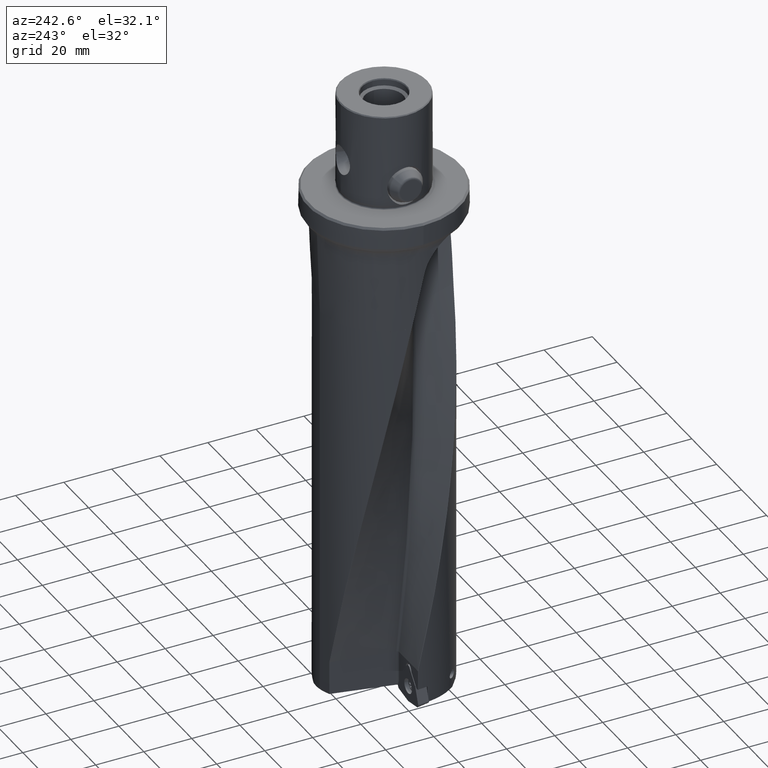
[diagram: clean part render]
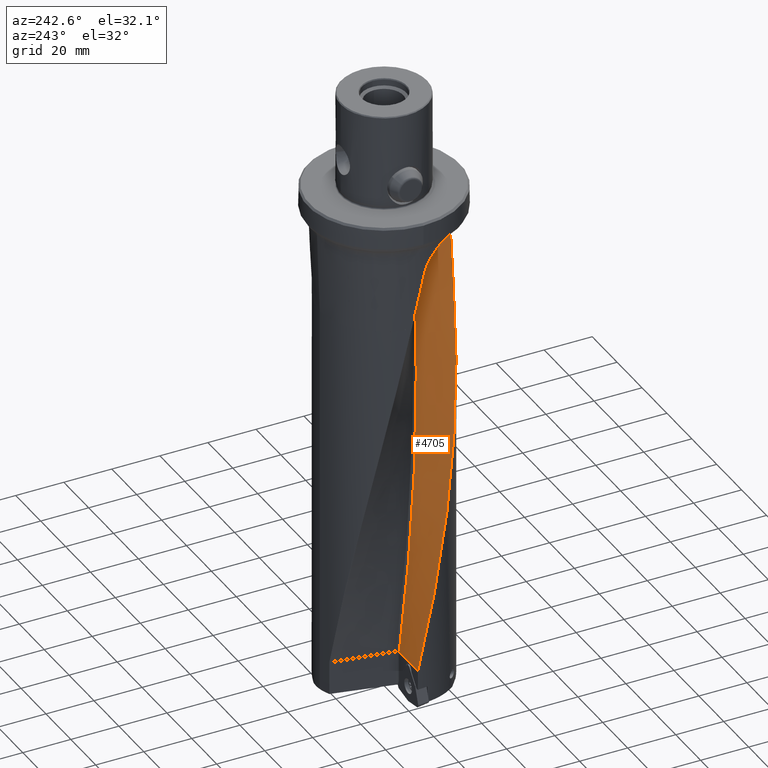
[diagram: same view with one face highlighted and labeled with its STEP entity id]
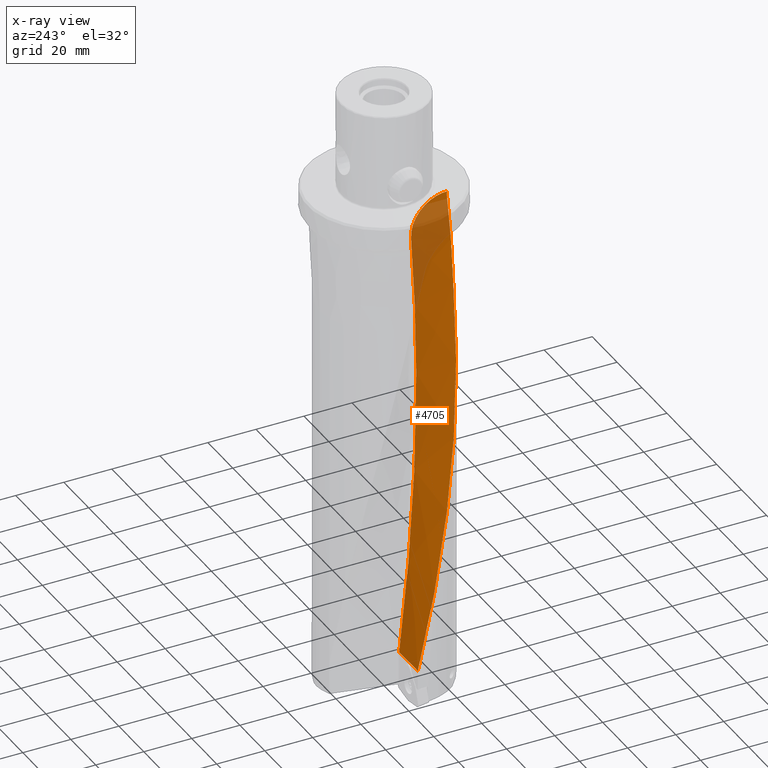
[diagram: x-ray of the same camera — body ghosted, the highlighted face saturated]
A machine part, auxiliary view. The second image highlights one B-rep face of the part: STEP entity #4705.
The next image is the same camera in x-ray: the body ghosted, the highlighted face saturated — about 13% of this face is hidden behind the body in this view.
In plain terms, the highlighted face is a freeform B-spline surface patch.
Its self-contained STEP definition (entity closure, byte-faithful):
#2061=EDGE_CURVE('NONE',#5253,#2175,#5753,.F.);
#2119=EDGE_CURVE('NONE',#3641,#4207,#5816,.T.);
#2175=VERTEX_POINT('NONE',#5877);
#2293=EDGE_CURVE('NONE',#3459,#2387,#6009,.T.);
#2387=VERTEX_POINT('NONE',#6117);
#2525=VERTEX_POINT('NONE',#6269);
#2707=EDGE_CURVE('NONE',#2175,#4785,#6469,.T.);
#2733=EDGE_CURVE('NONE',#5417,#5253,#6499,.F.);
#2829=EDGE_CURVE('NONE',#3459,#2525,#6606,.F.);
#3459=VERTEX_POINT('NONE',#7306);
#3487=EDGE_CURVE('NONE',#2387,#5417,#7340,.T.);
#3641=VERTEX_POINT('NONE',#7511);
#4207=VERTEX_POINT('NONE',#8147);
#4705=ADVANCED_FACE('NONE',(#8699),#8700,.T.);
#4785=VERTEX_POINT('NONE',#8786);
#5189=EDGE_CURVE('NONE',#4207,#2525,#9222,.T.);
#5253=VERTEX_POINT('NONE',#9289);
#5261=EDGE_CURVE('NONE',#4785,#3641,#9297,.T.);
#5417=VERTEX_POINT('NONE',#9472);
#5753=B_SPLINE_CURVE_WITH_KNOTS('',3,(#10646,#10647,#10648,#10649,#10650,#10651,#10652,#10653,#10654,#10655,#10656,#10657,#10658,#10659,#10660,#10661,#10662,#10663,#10664,#10665,#10666,#10667,#10668,#10669,#10670,#10671,#10672,#10673,#10674,#10675,#10676),.UNSPECIFIED.,.F.,.F.,(4,3,3,3,3,3,3,3,3,3,4),(0.0,0.0248487384319545,0.0370324245603338,0.0740648978611385,0.111097479039201,0.27462043930798,0.296263190505763,0.549257481116814,0.555509752870386,0.823924041653329,1.0),.UNSPECIFIED.);
#5816=LINE('',#12005,#12006);
#5877=CARTESIAN_POINT('',(-11.7444292904197,-0.259999999999999,-198.0));
#6009=B_SPLINE_CURVE_WITH_KNOTS('',3,(#14387,#14388,#14389,#14390,#14391,#14392,#14393,#14394,#14395,#14396,#14397,#14398,#14399),.UNSPECIFIED.,.F.,.F.,(4,3,3,3,4),(0.0,0.0196017286347085,0.528651392753987,0.891508665583998,1.0),.UNSPECIFIED.);
#6117=CARTESIAN_POINT('',(2.77654946059204,-27.6406512346424,-14.9137055816596));
#6269=CARTESIAN_POINT('',(-5.17314543508947,-26.1194532736821,-47.9783175582387));
#6469=B_SPLINE_CURVE_WITH_KNOTS('',3,(#18976,#18977,#18978,#18979),.UNSPECIFIED.,.F.,.F.,(4,4),(0.0,3.71899108156624E-007),.UNSPECIFIED.);
#6499=B_SPLINE_CURVE_WITH_KNOTS('',3,(#19023,#19024,#19025,#19026,#19027,#19028,#19029,#19030,#19031,#19032,#19033,#19034,#19035,#19036,#19037,#19038,#19039,#19040,#19041,#19042,#19043,#19044,#19045,#19046,#19047,#19048,#19049,#19050),.UNSPECIFIED.,.F.,.F.,(4,3,3,3,3,3,3,3,3,4),(0.0,0.106728747845441,0.212396460785693,0.31766751704343,0.429356454333694,0.540798069858931,0.652575191078701,0.768028879146587,0.883902352632624,0.986310112802425),.UNSPECIFIED.);
#6606=B_SPLINE_CURVE_WITH_KNOTS('',3,(#19198,#19199,#19200,#19201),.UNSPECIFIED.,.F.,.F.,(4,4),(0.0,1.0),.UNSPECIFIED.);
#7306=CARTESIAN_POINT('',(-5.17152220944264,-26.1198985198579,-47.971337785692));
#7340=B_SPLINE_CURVE_WITH_KNOTS('',3,(#32003,#32004,#32005,#32006,#32007,#32008,#32009),.UNSPECIFIED.,.F.,.F.,(4,3,4),(0.0,0.832539627853236,1.0),.UNSPECIFIED.);
#7511=CARTESIAN_POINT('',(-26.6350672281862,-0.26,-198.0));
#8147=CARTESIAN_POINT('',(-26.6351051178894,-0.26,-198.0));
#8699=FACE_OUTER_BOUND('',#52675,.T.);
#8700=B_SPLINE_SURFACE_WITH_KNOTS('',1,3,((#52676,#52677,#52678,#52679,#52680,#52681,#52682,#52683,#52684,#52685,#52686,#52687,#52688,#52689,#52690,#52691,#52692,#52693,#52694,#52695,#52696,#52697,#52698,#52699,#52700,#52701,#52702,#52703,#52704,#52705,#52706,#52707,#52708,#52709,#52710),(#52711,#52712,#52713,#52714,#52715,#52716,#52717,#52718,#52719,#52720,#52721,#52722,#52723,#52724,#52725,#52726,#52727,#52728,#52729,#52730,#52731,#52732,#52733,#52734,#52735,#52736,#52737,#52738,#52739,#52740,#52741,#52742,#52743,#52744,#52745),(#52746,#52747,#52748,#52749,#52750,#52751,#52752,#52753,#52754,#52755,#52756,#52757,#52758,#52759,#52760,#52761,#52762,#52763,#52764,#52765,#52766,#52767,#52768,#52769,#52770,#52771,#52772,#52773,#52774,#52775,#52776,#52777,#52778,#52779,#52780)),.UNSPECIFIED.,.F.,.F.,.F.,(2,1,2),(4,2,2,2,2,2,2,2,2,2,2,2,2,2,2,3,4),(0.0192830838277459,0.0239008574489247,0.48567821956681),(0.0,0.022621086929002,0.0512540848553759,0.108520080708123,0.223052072413616,0.249490240845004,0.25,0.452116055824604,0.499525982431127,0.5,0.566648047530097,0.681180039235591,0.74956172401725,0.75,0.795712030941085,0.910244022646579,0.993285612287636),.UNSPECIFIED.);
#8786=CARTESIAN_POINT('',(-11.7448011903606,-0.259999999999999,-198.0));
#9222=B_SPLINE_CURVE_WITH_KNOTS('',3,(#63199,#63200,#63201,#63202,#63203,#63204,#63205,#63206,#63207,#63208,#63209,#63210,#63211,#63212,#63213,#63214,#63215,#63216,#63217,#63218,#63219,#63220,#63221,#63222,#63223,#63224,#63225,#63226),.UNSPECIFIED.,.F.,.F.,(4,3,3,3,3,3,3,3,3,4),(0.0,0.0138827438490904,0.0280464108845102,0.257747791859258,0.30995499151774,0.549567036270865,0.619909714762301,0.825119576195621,0.929865442065738,1.0),.UNSPECIFIED.);
#9289=CARTESIAN_POINT('',(1.53331938763439,-12.07648666518,-28.6946503231104));
#9297=B_SPLINE_CURVE_WITH_KNOTS('',1,(#63388,#63389),.UNSPECIFIED.,.F.,.F.,(2,2),(0.0239114846065913,0.449405515360455),.UNSPECIFIED.);
#9472=CARTESIAN_POINT('',(3.19034234844843,-27.939617161997,-13.2488970584253));
#10646=CARTESIAN_POINT('',(-11.7444292904197,-0.260000000000003,-198.0));
#10647=CARTESIAN_POINT('',(-11.7404481139612,-0.423572215651565,-196.597484159067));
#10648=CARTESIAN_POINT('',(-11.734762533094,-0.587060482925274,-195.195030079079));
#10649=CARTESIAN_POINT('',(-11.7244926537587,-0.75035874887029,-193.792463837368));
#10650=CARTESIAN_POINT('',(-11.7194571874014,-0.830426186620939,-193.104765871933));
#10651=CARTESIAN_POINT('',(-11.7137918711264,-0.910449333659846,-192.417086021748));
#10652=CARTESIAN_POINT('',(-11.7073746259771,-0.990414696493313,-191.729411195895));
#10653=CARTESIAN_POINT('',(-11.6878693254343,-1.23347046245086,-189.639214570694));
#10654=CARTESIAN_POINT('',(-11.6604779652626,-1.47592989236455,-187.549022145203));
#10655=CARTESIAN_POINT('',(-11.6259137351895,-1.71738358341363,-185.458833240136));
#10656=CARTESIAN_POINT('',(-11.5913494044293,-1.95883797782816,-183.368638246256));
#10657=CARTESIAN_POINT('',(-11.5496099132605,-2.19930005417128,-181.278448353969));
#10658=CARTESIAN_POINT('',(-11.5006282596863,-2.43832528867002,-179.188263381943));
#10659=CARTESIAN_POINT('',(-11.2843423639558,-3.49377734415155,-169.958735672505));
#10660=CARTESIAN_POINT('',(-10.9273795198225,-4.52122858586647,-160.729279508943));
#10661=CARTESIAN_POINT('',(-10.4382967546399,-5.48364107114931,-151.5));
#10662=CARTESIAN_POINT('',(-10.373565192879,-5.61101923220007,-150.278477347655));
#10663=CARTESIAN_POINT('',(-10.3065306891539,-5.73724791189677,-149.056957673914));
#10664=CARTESIAN_POINT('',(-10.2372433722548,-5.86225613328573,-147.835440529714));
#10665=CARTESIAN_POINT('',(-9.42730495790757,-7.3235475375915,-133.556439651232));
#10666=CARTESIAN_POINT('',(-8.3092357268085,-8.6178726219878,-119.277860358465));
#10667=CARTESIAN_POINT('',(-6.97129980335332,-9.63471795805408,-105.0));
#10668=CARTESIAN_POINT('',(-6.9382352667501,-9.65984735270198,-104.647149890991));
#10669=CARTESIAN_POINT('',(-6.90503760500659,-9.68480680718085,-104.294300238835));
#10670=CARTESIAN_POINT('',(-6.87170819584421,-9.70959483172634,-103.941450993185));
#10671=CARTESIAN_POINT('',(-5.4408539386272,-10.7737616243661,-88.7933923271748));
#10672=CARTESIAN_POINT('',(-3.7675353459222,-11.5222985619632,-73.6461187602949));
#10673=CARTESIAN_POINT('',(-2.00371663534226,-11.879726064269,-58.5));
#10674=CARTESIAN_POINT('',(-0.846676631163071,-12.1141934255009,-48.564361371956));
#10675=CARTESIAN_POINT('',(0.348379531111434,-12.1802064260865,-38.6291992226245));
#10676=CARTESIAN_POINT('',(1.53331938763437,-12.07648666518,-28.6946503231106));
#12005=CARTESIAN_POINT('',(-10.9057015591833,-0.259999999999999,-198.0));
#12006=VECTOR('',#75732,1000.0);
#14387=CARTESIAN_POINT('',(-5.17152220944264,-26.1198985198579,-47.971337785692));
#14388=CARTESIAN_POINT('',(-5.12237485599287,-26.1373155388601,-47.7551148260384));
#14389=CARTESIAN_POINT('',(-5.07315832759056,-26.1545921161256,-47.5388962443836));
#14390=CARTESIAN_POINT('',(-5.02387352004261,-26.1717280398403,-47.3226820880854));
#14391=CARTESIAN_POINT('',(-3.74396524276729,-26.6167416594999,-41.7076801822562));
#14392=CARTESIAN_POINT('',(-2.417938067052,-26.9668896572348,-36.095674489545));
#14393=CARTESIAN_POINT('',(-1.06079314587168,-27.2155518178902,-30.4866781105723));
#14394=CARTESIAN_POINT('',(-0.0934024576043689,-27.3928014652848,-26.4885119730722));
#14395=CARTESIAN_POINT('',(0.889765206611544,-27.5185372192783,-22.4918789720954));
#14396=CARTESIAN_POINT('',(1.88304439728985,-27.5905550464164,-18.4967917092591));
#14397=CARTESIAN_POINT('',(2.1800266900902,-27.6120877832608,-17.3022935395709));
#14398=CARTESIAN_POINT('',(2.47791434501899,-27.6287913826467,-16.1079285225528));
#14399=CARTESIAN_POINT('',(2.77654945317412,-27.6406512344598,-14.9137055798028));
#18976=CARTESIAN_POINT('',(-11.7444292904197,-0.259999999999999,-198.0));
#18977=CARTESIAN_POINT('',(-11.7445532574622,-0.25999997694839,-198.000000197633));
#18978=CARTESIAN_POINT('',(-11.7446772239912,-0.259999999999999,-198.0));
#18979=CARTESIAN_POINT('',(-11.7448011903606,-0.259999999999999,-198.0));
#19023=CARTESIAN_POINT('',(1.53331938763437,-12.07648666518,-28.6946503231106));
#19024=CARTESIAN_POINT('',(1.63852500076727,-12.0672664520166,-27.8126190202008));
#19025=CARTESIAN_POINT('',(1.73279046369909,-12.1368566751291,-26.9263708577345));
#19026=CARTESIAN_POINT('',(1.81942977908485,-12.2853076537298,-26.0533009117775));
#19027=CARTESIAN_POINT('',(1.90520777697516,-12.4322828193636,-25.1889105175442));
#19028=CARTESIAN_POINT('',(1.98356566560817,-12.6565649960882,-24.3374442521803));
#19029=CARTESIAN_POINT('',(2.05779705156014,-12.955102265549,-23.5123879808378));
#19030=CARTESIAN_POINT('',(2.13174978687729,-13.2525188823561,-22.6904288152655));
#19031=CARTESIAN_POINT('',(2.20165498262474,-13.6236389097422,-21.8946877804039));
#19032=CARTESIAN_POINT('',(2.2698380801198,-14.0617121107786,-21.1375263078664));
#19033=CARTESIAN_POINT('',(2.34217798028891,-14.5264925738843,-20.3342042625571));
#19034=CARTESIAN_POINT('',(2.41262565485011,-15.0666424983044,-19.5743153106026));
#19035=CARTESIAN_POINT('',(2.48218457476698,-15.6712989971596,-18.8699690318674));
#19036=CARTESIAN_POINT('',(2.55158946479275,-16.27461655667,-18.1671824435462));
#19037=CARTESIAN_POINT('',(2.62009906609805,-16.9421549766473,-17.5196909856961));
#19038=CARTESIAN_POINT('',(2.68692215846335,-17.6609818286449,-16.9354110898588));
#19039=CARTESIAN_POINT('',(2.7539464281708,-18.3819727779691,-16.349372163238));
#19040=CARTESIAN_POINT('',(2.81924302458818,-19.1545602080068,-15.8269208917073));
#19041=CARTESIAN_POINT('',(2.88015907140987,-19.9660472819384,-15.373586408307));
#19042=CARTESIAN_POINT('',(2.94307876545219,-20.8042257435272,-14.9053408723176));
#19043=CARTESIAN_POINT('',(3.00129380568345,-21.6839040619961,-14.5108279413973));
#19044=CARTESIAN_POINT('',(3.05035140963496,-22.5909318241515,-14.1938147532693));
#19045=CARTESIAN_POINT('',(3.09958738525337,-23.5012575063195,-13.8756489166987));
#19046=CARTESIAN_POINT('',(3.13956127885144,-24.4391311720067,-13.6355394764244));
#19047=CARTESIAN_POINT('',(3.16443450789422,-25.3917064527597,-13.4768147546396));
#19048=CARTESIAN_POINT('',(3.18641720676248,-26.2335824918585,-13.3365355108012));
#19049=CARTESIAN_POINT('',(3.19657180064682,-27.086941291137,-13.2598168244513));
#19050=CARTESIAN_POINT('',(3.19034234844843,-27.9396171619972,-13.2488970584253));
#19198=CARTESIAN_POINT('',(-5.1731453868315,-26.1194532888135,-47.9783175704265));
#19199=CARTESIAN_POINT('',(-5.17259224244446,-26.1195626997763,-47.9759915402811));
#19200=CARTESIAN_POINT('',(-5.17205106615506,-26.1197110975812,-47.973664487043));
#19201=CARTESIAN_POINT('',(-5.17152220944264,-26.1198985198579,-47.971337785692));
#32003=CARTESIAN_POINT('',(2.77654945317412,-27.6406512344598,-14.9137055798028));
#32004=CARTESIAN_POINT('',(2.89429257541614,-27.645327230789,-14.442858267614));
#32005=CARTESIAN_POINT('',(3.01056312181249,-27.7149672994031,-13.9719986523494));
#32006=CARTESIAN_POINT('',(3.12297636664848,-27.850312377828,-13.5195908132225));
#32007=CARTESIAN_POINT('',(3.14558761923593,-27.877536231736,-13.4285916792863));
#32008=CARTESIAN_POINT('',(3.16805637422707,-27.9073026403545,-13.33828676866));
#32009=CARTESIAN_POINT('',(3.19034234844843,-27.939617161997,-13.2488970584253));
#52675=EDGE_LOOP('',(#79158,#79159,#79160,#79161,#79162,#79163,#79164,#79165,#79166));
#52676=CARTESIAN_POINT('',(-11.5828291908837,-0.260000000000003,-198.0));
#52677=CARTESIAN_POINT('',(-11.5788383129873,-0.421686105093685,-196.597242793783));
#52678=CARTESIAN_POINT('',(-11.5729271693095,-0.583228729758584,-195.194975273285));
#52679=CARTESIAN_POINT('',(-11.550419466303,-0.94889702753753,-192.017213801982));
#52680=CARTESIAN_POINT('',(-11.5325389079679,-1.15286678596866,-190.241964714258));
#52681=CARTESIAN_POINT('',(-11.4631538614702,-1.76306204269738,-184.916220744986));
#52682=CARTESIAN_POINT('',(-11.3959060018152,-2.16757352243031,-181.365729157337));
#52683=CARTESIAN_POINT('',(-11.1326021040269,-3.36798326911458,-170.714261032456));
#52684=CARTESIAN_POINT('',(-10.87498574707,-4.15075684355146,-163.613291133292));
#52685=CARTESIAN_POINT('',(-10.4615128766328,-5.07210897328355,-154.873147363819));
#52686=CARTESIAN_POINT('',(-10.3797954489892,-5.24308022207576,-153.233981618831));
#52687=CARTESIAN_POINT('',(-10.2922963073652,-5.41528005397603,-151.563210134968));
#52688=CARTESIAN_POINT('',(-10.2906396000302,-5.41853670943449,-151.53160506761));
#52689=CARTESIAN_POINT('',(-9.6314999819652,-6.71273482598351,-138.968804538929));
#52690=CARTESIAN_POINT('',(-8.73353046412775,-7.88353318912679,-126.437609077794));
#52691=CARTESIAN_POINT('',(-7.40082350283344,-9.08913377677669,-110.966998167033));
#52692=CARTESIAN_POINT('',(-7.13762145281029,-9.30750915108059,-108.027582717422));
#52693=CARTESIAN_POINT('',(-6.86246882904446,-9.51630618427818,-105.05877817854));
#52694=CARTESIAN_POINT('',(-6.8597440880869,-9.51837196479737,-105.02938908927));
#52695=CARTESIAN_POINT('',(-6.47378350047844,-9.8107266385213,-100.867821053124));
#52696=CARTESIAN_POINT('',(-6.07245250958923,-10.0778805566342,-96.7356421062503));
#52697=CARTESIAN_POINT('',(-4.9405650915511,-10.73710749095,-85.5024796736289));
#52698=CARTESIAN_POINT('',(-4.18063425858377,-11.0810291449955,-78.4014961878862));
#52699=CARTESIAN_POINT('',(-2.92082209581764,-11.5017167770035,-67.0608482456957));
#52700=CARTESIAN_POINT('',(-2.43954169712166,-11.6302910533017,-62.8211837892414));
#52701=CARTESIAN_POINT('',(-1.94812901745414,-11.7291573674891,-58.5543462218608));
#52702=CARTESIAN_POINT('',(-1.94499919625561,-11.7297857457287,-58.5271731109304));
#52703=CARTESIAN_POINT('',(-1.61539992490998,-11.7958224808776,-55.6658540816613));
#52704=CARTESIAN_POINT('',(-1.28588463564631,-11.8476513215723,-52.8317110107071));
#52705=CARTESIAN_POINT('',(-0.123970475310305,-11.9816365924147,-42.8965960959503));
#52706=CARTESIAN_POINT('',(0.718657924795003,-11.9919782029902,-35.7956310386349));
#52707=CARTESIAN_POINT('',(1.55602960719819,-11.9164766926489,-28.6946494939369));
#52708=CARTESIAN_POINT('',(2.1631671815274,-11.861734211132,-23.5460723435471));
#52709=CARTESIAN_POINT('',(2.76754130123766,-11.7618640316017,-18.3974865257461));
#52710=CARTESIAN_POINT('',(3.36251043924642,-11.6167057677469,-13.2488826793463));
#52711=CARTESIAN_POINT('',(-11.7444292904197,-0.260000000000003,-198.0));
#52712=CARTESIAN_POINT('',(-11.7404474352067,-0.423600103242438,-196.597245042737));
#52713=CARTESIAN_POINT('',(-11.734496624307,-0.587057423404664,-195.194974963443));
#52714=CARTESIAN_POINT('',(-11.7118371090989,-0.957060233616663,-192.017213236409));
#52715=CARTESIAN_POINT('',(-11.6938166750703,-1.16344943942798,-190.241964048505));
#52716=CARTESIAN_POINT('',(-11.6238483310769,-1.78088980672049,-184.916219881291));
#52717=CARTESIAN_POINT('',(-11.5559933792043,-2.19021371806026,-181.365728298477));
#52718=CARTESIAN_POINT('',(-11.2902257460111,-3.40495045639631,-170.714260394861));
#52719=CARTESIAN_POINT('',(-11.0301102871153,-4.19712828770936,-163.613290918887));
#52720=CARTESIAN_POINT('',(-10.6125472001701,-5.12968617608748,-154.873147341253));
#52721=CARTESIAN_POINT('',(-10.5300187670233,-5.30274301281156,-153.233981617998));
#52722=CARTESIAN_POINT('',(-10.4416486366221,-5.47705042896594,-151.56321013496));
#52723=CARTESIAN_POINT('',(-10.439975437096,-5.48034694579488,-151.53160506761));
#52724=CARTESIAN_POINT('',(-9.77427385658789,-6.79038704106948,-138.968804538929));
#52725=CARTESIAN_POINT('',(-8.86722077122038,-7.97593031819011,-126.437609077794));
#52726=CARTESIAN_POINT('',(-7.52075502227175,-9.19754785512634,-110.966998167033));
#52727=CARTESIAN_POINT('',(-7.25482539985196,-9.418868994914,-108.027582717422));
#52728=CARTESIAN_POINT('',(-6.9768096142549,-9.63053351058692,-105.05877817854));
#52729=CARTESIAN_POINT('',(-6.97405651927611,-9.63262766651456,-105.02938908927));
#52730=CARTESIAN_POINT('',(-6.58407941459786,-9.92899885730832,-100.867821053124));
#52731=CARTESIAN_POINT('',(-6.17854928724235,-10.1999291069669,-96.7356421062503));
#52732=CARTESIAN_POINT('',(-5.0347427265321,-10.8687995200141,-85.5024796736289));
#52733=CARTESIAN_POINT('',(-4.26672981312923,-11.2181412044167,-78.4014961878862));
#52734=CARTESIAN_POINT('',(-2.99334330039299,-11.6462666012675,-67.0608482456957));
#52735=CARTESIAN_POINT('',(-2.50683933247091,-11.7773495269043,-62.8211837892414));
#52736=CARTESIAN_POINT('',(-2.01004763538477,-11.8784482974451,-58.5543462218608));
#52737=CARTESIAN_POINT('',(-2.00688355324314,-11.8790908810255,-58.5271731109304));
#52738=CARTESIAN_POINT('',(-1.67367609317516,-11.9466221768789,-55.6658540816613));
#52739=CARTESIAN_POINT('',(-1.34053334469079,-11.9998013344151,-52.831711073368));
#52740=CARTESIAN_POINT('',(-0.165749516227695,-12.1380574861292,-42.8965964774205));
#52741=CARTESIAN_POINT('',(0.68635229453808,-12.1506231067117,-35.7956318255261));
#52742=CARTESIAN_POINT('',(1.53331938763437,-12.07648666518,-28.6946503231106));
#52743=CARTESIAN_POINT('',(2.14741412864992,-12.0227339288183,-23.5460732033779));
#52744=CARTESIAN_POINT('',(2.75880955042012,-11.9234019493626,-18.3974872253322));
#52745=CARTESIAN_POINT('',(3.3608058046887,-11.7783187518514,-13.248882821695));
#52746=CARTESIAN_POINT('',(-27.9044392440217,-0.26,-198.0));
#52747=CARTESIAN_POINT('',(-27.9013596571451,-0.614999918117809,-196.597469938125));
#52748=CARTESIAN_POINT('',(-27.8914421240608,-0.969926788012637,-195.194943979222));
#52749=CARTESIAN_POINT('',(-27.8536013886884,-1.77338084153,-192.017156679101));
#52750=CARTESIAN_POINT('',(-27.821593385316,-2.22171478535985,-190.241897473208));
#52751=CARTESIAN_POINT('',(-27.6932952917498,-3.56366620903151,-184.916133511762));
#52752=CARTESIAN_POINT('',(-27.564731118107,-4.45423328105544,-181.365642412443));
#52753=CARTESIAN_POINT('',(-27.052589944429,-7.10166918456854,-170.714196635348));
#52754=CARTESIAN_POINT('',(-26.542564291644,-8.83427270349903,-163.613269478437));
#52755=CARTESIAN_POINT('',(-25.7159795539007,-10.8874064564806,-154.873145084636));
#52756=CARTESIAN_POINT('',(-25.5523505704334,-11.2690220863914,-153.233981534719));
#52757=CARTESIAN_POINT('',(-25.3768815623123,-11.6540879279573,-151.563210134177));
#52758=CARTESIAN_POINT('',(-25.37355914368,-11.6613705818336,-151.53160506761));
#52759=CARTESIAN_POINT('',(-24.0516613188572,-14.5556085496667,-138.968804538929));
#52760=CARTESIAN_POINT('',(-22.2362514804825,-17.215643224522,-126.437609077794));
#52761=CARTESIAN_POINT('',(-19.5139069661037,-20.0389556900919,-110.966998167033));
#52762=CARTESIAN_POINT('',(-18.9752201040196,-20.5548533782549,-108.027582717422));
#52763=CARTESIAN_POINT('',(-18.4108881352996,-21.0532661414611,-105.05877817854));
#52764=CARTESIAN_POINT('',(-18.4052996381965,-21.0581978382336,-105.02938908927));
#52765=CARTESIAN_POINT('',(-17.6136708265405,-21.7562207360106,-100.867821053124));
#52766=CARTESIAN_POINT('',(-16.7882270525544,-22.4047841402411,-96.7356421062503));
#52767=CARTESIAN_POINT('',(-14.4525062246323,-24.0380024264222,-85.5024796736289));
#52768=CARTESIAN_POINT('',(-12.8762852676754,-24.9293471465306,-78.4014961878862));
#52769=CARTESIAN_POINT('',(-10.2454637579289,-26.1012490276671,-67.0608482456958));
#52770=CARTESIAN_POINT('',(-9.23660286739584,-26.4831968871654,-62.8211837892414));
#52771=CARTESIAN_POINT('',(-8.20190942844764,-26.8075412930361,-58.5543462218609));
#52772=CARTESIAN_POINT('',(-8.19531925199695,-26.8096044107077,-58.5271731109304));
#52773=CARTESIAN_POINT('',(-7.50129291969341,-27.0265917770036,-55.6658540816613));
#52774=CARTESIAN_POINT('',(-6.80540424913918,-27.2148026186932,-52.8317173394595));
#52775=CARTESIAN_POINT('',(-4.34365360796668,-27.7801468575825,-42.8966346244413));
#52776=CARTESIAN_POINT('',(-2.54421073115422,-28.015113478857,-35.7957105146419));
#52777=CARTESIAN_POINT('',(-0.737702568747813,-28.0774839182836,-28.6947332404838));
#52778=CARTESIAN_POINT('',(0.572108840902002,-28.1227056974518,-23.5461591864552));
#52779=CARTESIAN_POINT('',(1.8856344686657,-28.0771937254526,-18.3975571839422));
#52780=CARTESIAN_POINT('',(3.19034234891609,-27.9396171622973,-13.2488970565652));
#63199=CARTESIAN_POINT('',(-26.6351051178894,-0.26,-198.0));
#63200=CARTESIAN_POINT('',(-26.6334161738134,-0.428277132584541,-197.305763523757));
#63201=CARTESIAN_POINT('',(-26.63013004252,-0.596535551507657,-196.611525338835));
#63202=CARTESIAN_POINT('',(-26.6252493942541,-0.764745165647561,-195.917286826476));
#63203=CARTESIAN_POINT('',(-26.6202699840088,-0.936358572387045,-195.209000104549));
#63204=CARTESIAN_POINT('',(-26.613632041873,-1.10792111458389,-194.500713544366));
#63205=CARTESIAN_POINT('',(-26.6053316006582,-1.27940267495398,-193.792424888906));
#63206=CARTESIAN_POINT('',(-26.4707179582335,-4.06043043635295,-182.305648061885));
#63207=CARTESIAN_POINT('',(-25.8970210370746,-6.82021661149901,-170.819001518743));
#63208=CARTESIAN_POINT('',(-24.9108872548435,-9.42399131755853,-159.332241405835));
#63209=CARTESIAN_POINT('',(-24.6867558933321,-10.015784825147,-156.721497072915));
#63210=CARTESIAN_POINT('',(-24.4414267034998,-10.5995275301131,-154.110748549895));
#63211=CARTESIAN_POINT('',(-24.1756360180076,-11.1738333049566,-151.5));
#63212=CARTESIAN_POINT('',(-22.955753510543,-13.8096877833438,-139.517614381369));
#63213=CARTESIAN_POINT('',(-21.3029946106937,-16.2449127418621,-127.535248389414));
#63214=CARTESIAN_POINT('',(-19.3006731573048,-18.3489426191704,-115.552937783236));
#63215=CARTESIAN_POINT('',(-18.7128535659426,-18.9666206551321,-112.035302334554));
#63216=CARTESIAN_POINT('',(-18.0954028011779,-19.5560160003963,-108.517655251542));
#63217=CARTESIAN_POINT('',(-17.4511929985844,-20.1146111532852,-105.0));
#63218=CARTESIAN_POINT('',(-15.5718473842382,-21.7441941657604,-94.7379860673485));
#63219=CARTESIAN_POINT('',(-13.4634788297478,-23.1092295480035,-84.4759778017497));
#63220=CARTESIAN_POINT('',(-11.2064472136189,-24.155572434783,-74.2140757476354));
#63221=CARTESIAN_POINT('',(-10.0543840073169,-24.6896602749444,-68.9760632631243));
#63222=CARTESIAN_POINT('',(-8.86413918583296,-25.1411694421479,-63.7380239331388));
#63223=CARTESIAN_POINT('',(-7.64771833945467,-25.5055515243942,-58.5));
#63224=CARTESIAN_POINT('',(-6.83324096018917,-25.7495303778333,-54.9927828898249));
#63225=CARTESIAN_POINT('',(-6.00718787078959,-25.9544930158865,-51.4855389822477));
#63226=CARTESIAN_POINT('',(-5.1731453868315,-26.1194532888135,-47.9783175704265));
#63388=CARTESIAN_POINT('',(-11.7448011903606,-0.26,-198.0));
#63389=CARTESIAN_POINT('',(-26.6350672281862,-0.26,-198.0));
#75732=DIRECTION('',(-1.0,-1.70374627104865E-017,0.0));
#79158=ORIENTED_EDGE('',*,*,#2293,.T.);
#79159=ORIENTED_EDGE('',*,*,#3487,.T.);
#79160=ORIENTED_EDGE('',*,*,#2733,.T.);
#79161=ORIENTED_EDGE('',*,*,#2061,.T.);
#79162=ORIENTED_EDGE('',*,*,#2707,.T.);
#79163=ORIENTED_EDGE('',*,*,#5261,.T.);
#79164=ORIENTED_EDGE('',*,*,#2119,.T.);
#79165=ORIENTED_EDGE('',*,*,#5189,.T.);
#79166=ORIENTED_EDGE('',*,*,#2829,.F.);